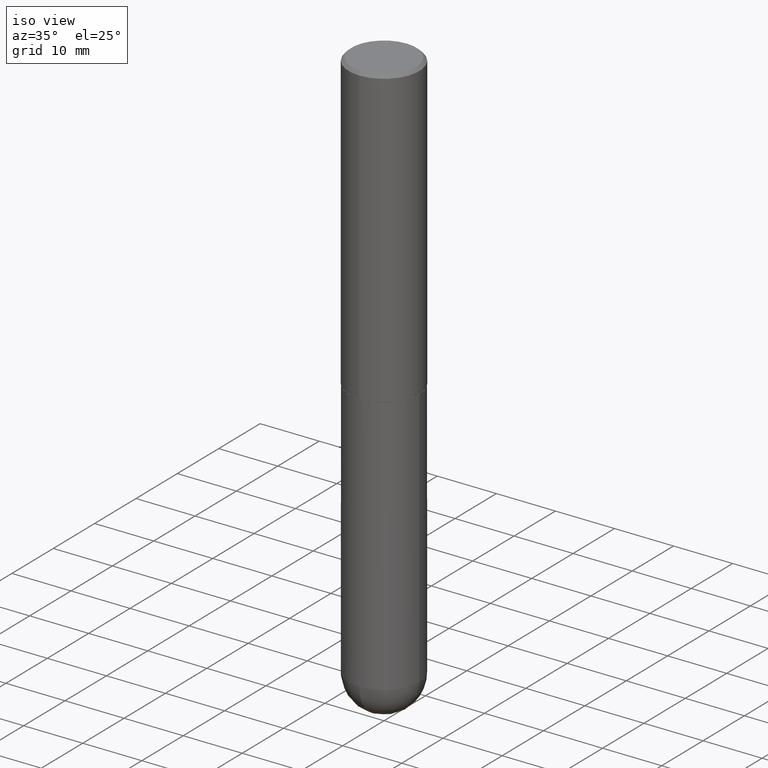
[diagram: clean part render]
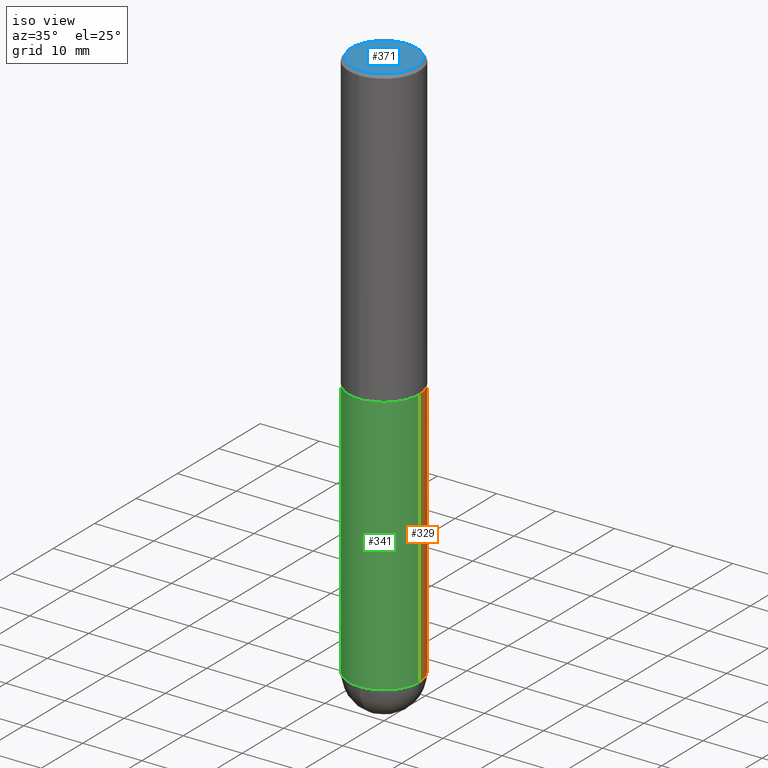
[diagram: same view with three faces highlighted in distinct colors, each labeled with its STEP entity id]
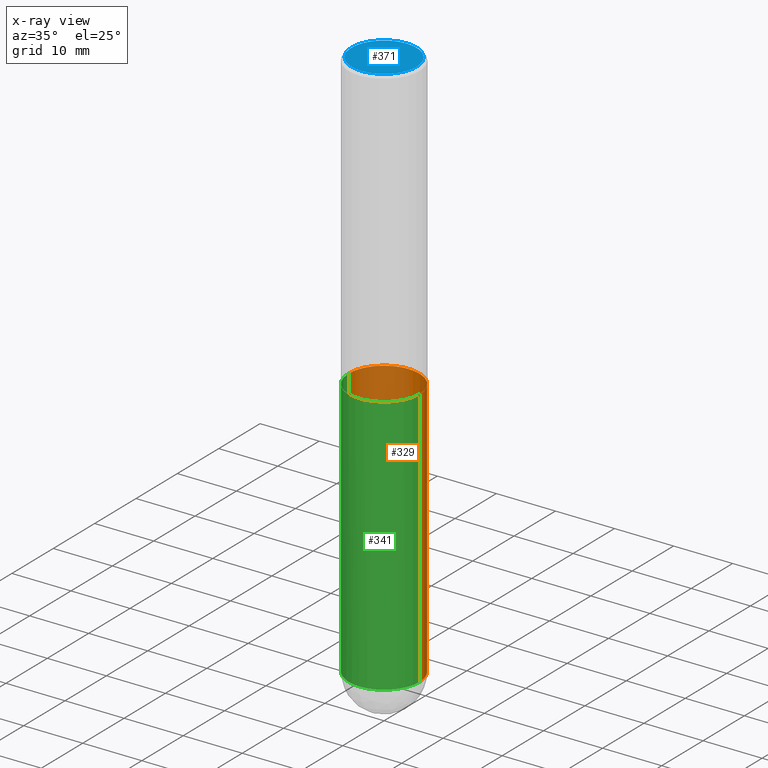
[diagram: x-ray of the same camera — body ghosted, the three highlighted faces saturated]
A machine part, iso view with three faces highlighted in distinct colors.
The next image is the same camera in x-ray (body ghosted, the three faces saturated) — at least one of them is partly hidden behind the body in this view.
Their STEP definitions:

[orange] entity #329 — the highlighted cylindrical surface (partial cylindrical patch) has radius 5.9995 mm, axis along (-0, 0, 1).
#5 = CIRCLE ( 'NONE', #134, 0.2361999999999999933 ) ;
#46 = DIRECTION ( 'NONE',  ( -2.445468806185136597E-29, 3.491481338843145583E-15, 1.000000000000000000 ) ) ;
#48 = CYLINDRICAL_SURFACE ( 'NONE', #389, 0.2361999999999999933 ) ;
#61 = VERTEX_POINT ( 'NONE', #96 ) ;
#62 = CARTESIAN_POINT ( 'NONE',  ( -0.2361999999999999933, 1.678301941865356591E-15, -1.161852468318208757E-29 ) ) ;
#83 = ORIENTED_EDGE ( 'NONE', *, *, #91, .F. ) ;
#88 = EDGE_CURVE ( 'NONE', #220, #141, #5, .T. ) ;
#91 = EDGE_CURVE ( 'NONE', #107, #61, #196, .T. ) ;
#93 = DIRECTION ( 'NONE',  ( 1.000000000000000000, -6.982962677686265133E-15, 0.000000000000000000 ) ) ;
#96 = CARTESIAN_POINT ( 'NONE',  ( 0.2361999999999999933, -8.522356799982228232E-15, -1.968500000000000139 ) ) ;
#100 = DIRECTION ( 'NONE',  ( 1.000000000000000000, -6.982962677686265133E-15, 0.000000000000000000 ) ) ;
#107 = VERTEX_POINT ( 'NONE', #192 ) ;
#111 = ORIENTED_EDGE ( 'NONE', *, *, #158, .T. ) ;
#123 = DIRECTION ( 'NONE',  ( -2.445468806185136597E-29, 3.491481338843145583E-15, 1.000000000000000000 ) ) ;
#129 = CARTESIAN_POINT ( 'NONE',  ( 9.050190957929953666E-29, -1.292127413879071357E-14, -3.700800000000000090 ) ) ;
#134 = AXIS2_PLACEMENT_3D ( 'NONE', #154, #391, #93 ) ;
#135 = CARTESIAN_POINT ( 'NONE',  ( -0.2361999999999999933, -8.218825635286365458E-15, -1.968500000000000139 ) ) ;
#141 = VERTEX_POINT ( 'NONE', #152 ) ;
#152 = CARTESIAN_POINT ( 'NONE',  ( -0.2361999999999999933, -8.218825635286368613E-15, -3.700800000000000090 ) ) ;
#154 = CARTESIAN_POINT ( 'NONE',  ( 9.050190957929953666E-29, -1.292127413879071357E-14, -3.700800000000000090 ) ) ;
#157 = AXIS2_PLACEMENT_3D ( 'NONE', #129, #170, #100 ) ;
#158 = EDGE_CURVE ( 'NONE', #141, #381, #222, .T. ) ;
#164 = DIRECTION ( 'NONE',  ( 1.000000000000000000, -6.982962677686269077E-15, 0.000000000000000000 ) ) ;
#170 = DIRECTION ( 'NONE',  ( -2.445468806185136597E-29, 3.491481338843145583E-15, 1.000000000000000000 ) ) ;
#192 = CARTESIAN_POINT ( 'NONE',  ( 0.2361999999999999933, -1.154650336162122153E-14, -3.700800000000000090 ) ) ;
#196 = LINE ( 'NONE', #301, #233 ) ;
#214 = DIRECTION ( 'NONE',  ( 1.000000000000000000, -6.982962677686266711E-15, 4.876176775795936353E-29 ) ) ;
#220 = VERTEX_POINT ( 'NONE', #377 ) ;
#222 = LINE ( 'NONE', #62, #287 ) ;
#233 = VECTOR ( 'NONE', #236, 39.37007874015748143 ) ;
#236 = DIRECTION ( 'NONE',  ( -2.445468806185136877E-29, 3.491481338843145188E-15, 1.000000000000000000 ) ) ;
#239 = AXIS2_PLACEMENT_3D ( 'NONE', #410, #46, #164 ) ;
#244 = CIRCLE ( 'NONE', #239, 0.2361999999999999933 ) ;
#245 = ORIENTED_EDGE ( 'NONE', *, *, #309, .F. ) ;
#252 = DIRECTION ( 'NONE',  ( -2.445468806185136877E-29, 3.491481338843145188E-15, 1.000000000000000000 ) ) ;
#256 = ORIENTED_EDGE ( 'NONE', *, *, #88, .T. ) ;
#287 = VECTOR ( 'NONE', #252, 39.37007874015748143 ) ;
#289 = EDGE_CURVE ( 'NONE', #107, #220, #397, .T. ) ;
#301 = CARTESIAN_POINT ( 'NONE',  ( 0.2361999999999999933, -1.649375784469496131E-15, 1.151752954443000088E-29 ) ) ;
#304 = FACE_OUTER_BOUND ( 'NONE', #349, .T. ) ;
#309 = EDGE_CURVE ( 'NONE', #61, #381, #244, .T. ) ;
#321 = ORIENTED_EDGE ( 'NONE', *, *, #289, .T. ) ;
#329 = ADVANCED_FACE ( 'NONE', ( #304 ), #48, .T. ) ;
#349 = EDGE_LOOP ( 'NONE', ( #256, #111, #245, #83, #321 ) ) ;
#377 = CARTESIAN_POINT ( 'NONE',  ( 1.649375784469585666E-15, 0.2361999999999869759, -3.700800000000000978 ) ) ;
#381 = VERTEX_POINT ( 'NONE', #135 ) ;
#389 = AXIS2_PLACEMENT_3D ( 'NONE', #403, #123, #214 ) ;
#391 = DIRECTION ( 'NONE',  ( -2.445468806185136597E-29, 3.491481338843145583E-15, 1.000000000000000000 ) ) ;
#397 = CIRCLE ( 'NONE', #157, 0.2361999999999999933 ) ;
#403 = CARTESIAN_POINT ( 'NONE',  ( 0.000000000000000000, 0.000000000000000000, 0.000000000000000000 ) ) ;
#410 = CARTESIAN_POINT ( 'NONE',  ( 4.813905344975441835E-29, -6.872981015512731707E-15, -1.968500000000000139 ) ) ;

[blue] entity #371 — the highlighted planar face has unit normal (0, -0, -1).
#1 = DIRECTION ( 'NONE',  ( -6.982962677686265922E-15, -1.000000000000000000, 3.490229039397398317E-15 ) ) ;
#9 = EDGE_CURVE ( 'NONE', #224, #274, #254, .T. ) ;
#21 = CARTESIAN_POINT ( 'NONE',  ( 1.509716530915770323E-15, 0.2161999999999999478, -7.440516106625514919E-16 ) ) ;
#33 = EDGE_LOOP ( 'NONE', ( #115, #310 ) ) ;
#43 = CARTESIAN_POINT ( 'NONE',  ( -1.551844647095919747E-15, -0.2161999999999999478, 7.756593336280488957E-16 ) ) ;
#53 = CARTESIAN_POINT ( 'NONE',  ( 1.579546157692633424E-15, 0.2161999999999999478, -7.335157030073857892E-16 ) ) ;
#77 = AXIS2_PLACEMENT_3D ( 'NONE', #21, #132, #204 ) ;
#99 = FACE_OUTER_BOUND ( 'NONE', #33, .T. ) ;
#115 = ORIENTED_EDGE ( 'NONE', *, *, #9, .T. ) ;
#130 = CIRCLE ( 'NONE', #161, 0.2161999999999999478 ) ;
#132 = DIRECTION ( 'NONE',  ( 2.446343282214230400E-29, -3.490229039397398317E-15, -1.000000000000000000 ) ) ;
#161 = AXIS2_PLACEMENT_3D ( 'NONE', #202, #175, #243 ) ;
#175 = DIRECTION ( 'NONE',  ( -2.446343282214230400E-29, 3.490229039397398712E-15, 1.000000000000000000 ) ) ;
#182 = CARTESIAN_POINT ( 'NONE',  ( -5.154889382848865160E-46, 7.354546170893803255E-32, 2.107181531033159333E-17 ) ) ;
#202 = CARTESIAN_POINT ( 'NONE',  ( -5.154889382848865160E-46, 7.354546170893803255E-32, 2.107181531033159333E-17 ) ) ;
#204 = DIRECTION ( 'NONE',  ( 6.982962677686265922E-15, 1.000000000000000000, -3.490229039397398317E-15 ) ) ;
#224 = VERTEX_POINT ( 'NONE', #53 ) ;
#243 = DIRECTION ( 'NONE',  ( -6.982962677686265922E-15, -1.000000000000000000, 3.490229039397398317E-15 ) ) ;
#254 = CIRCLE ( 'NONE', #387, 0.2161999999999999478 ) ;
#274 = VERTEX_POINT ( 'NONE', #43 ) ;
#281 = DIRECTION ( 'NONE',  ( -2.446343282214230400E-29, 3.490229039397398712E-15, 1.000000000000000000 ) ) ;
#297 = EDGE_CURVE ( 'NONE', #274, #224, #130, .T. ) ;
#303 = PLANE ( 'NONE',  #77 ) ;
#310 = ORIENTED_EDGE ( 'NONE', *, *, #297, .T. ) ;
#371 = ADVANCED_FACE ( 'NONE', ( #99 ), #303, .F. ) ;
#387 = AXIS2_PLACEMENT_3D ( 'NONE', #182, #281, #1 ) ;

[green] entity #341 — the highlighted cylindrical surface (partial cylindrical patch) has radius 5.9995 mm, axis along (-0, 0, 1).
#13 = CARTESIAN_POINT ( 'NONE',  ( -1.678301941865268633E-15, -0.2362000000000132882, -3.700799999999998757 ) ) ;
#15 = CIRCLE ( 'NONE', #105, 0.2361999999999999933 ) ;
#28 = DIRECTION ( 'NONE',  ( -2.445468806185136597E-29, 3.491481338843145583E-15, 1.000000000000000000 ) ) ;
#61 = VERTEX_POINT ( 'NONE', #96 ) ;
#62 = CARTESIAN_POINT ( 'NONE',  ( -0.2361999999999999933, 1.678301941865356591E-15, -1.161852468318208757E-29 ) ) ;
#66 = EDGE_CURVE ( 'NONE', #141, #84, #15, .T. ) ;
#76 = DIRECTION ( 'NONE',  ( 1.000000000000000000, -6.982962677686265133E-15, 0.000000000000000000 ) ) ;
#84 = VERTEX_POINT ( 'NONE', #13 ) ;
#91 = EDGE_CURVE ( 'NONE', #107, #61, #196, .T. ) ;
#96 = CARTESIAN_POINT ( 'NONE',  ( 0.2361999999999999933, -8.522356799982228232E-15, -1.968500000000000139 ) ) ;
#105 = AXIS2_PLACEMENT_3D ( 'NONE', #235, #368, #76 ) ;
#106 = ORIENTED_EDGE ( 'NONE', *, *, #361, .F. ) ;
#107 = VERTEX_POINT ( 'NONE', #192 ) ;
#117 = CYLINDRICAL_SURFACE ( 'NONE', #143, 0.2361999999999999933 ) ;
#135 = CARTESIAN_POINT ( 'NONE',  ( -0.2361999999999999933, -8.218825635286365458E-15, -1.968500000000000139 ) ) ;
#141 = VERTEX_POINT ( 'NONE', #152 ) ;
#143 = AXIS2_PLACEMENT_3D ( 'NONE', #313, #28, #317 ) ;
#152 = CARTESIAN_POINT ( 'NONE',  ( -0.2361999999999999933, -8.218825635286368613E-15, -3.700800000000000090 ) ) ;
#158 = EDGE_CURVE ( 'NONE', #141, #381, #222, .T. ) ;
#181 = CARTESIAN_POINT ( 'NONE',  ( 9.050190957929953666E-29, -1.292127413879071357E-14, -3.700800000000000090 ) ) ;
#190 = EDGE_CURVE ( 'NONE', #84, #107, #372, .T. ) ;
#192 = CARTESIAN_POINT ( 'NONE',  ( 0.2361999999999999933, -1.154650336162122153E-14, -3.700800000000000090 ) ) ;
#196 = LINE ( 'NONE', #301, #233 ) ;
#201 = AXIS2_PLACEMENT_3D ( 'NONE', #382, #283, #237 ) ;
#210 = DIRECTION ( 'NONE',  ( 1.000000000000000000, -6.982962677686265133E-15, 0.000000000000000000 ) ) ;
#222 = LINE ( 'NONE', #62, #287 ) ;
#233 = VECTOR ( 'NONE', #236, 39.37007874015748143 ) ;
#235 = CARTESIAN_POINT ( 'NONE',  ( 9.050190957929953666E-29, -1.292127413879071357E-14, -3.700800000000000090 ) ) ;
#236 = DIRECTION ( 'NONE',  ( -2.445468806185136877E-29, 3.491481338843145188E-15, 1.000000000000000000 ) ) ;
#237 = DIRECTION ( 'NONE',  ( 1.000000000000000000, -6.982962677686269077E-15, 0.000000000000000000 ) ) ;
#247 = ORIENTED_EDGE ( 'NONE', *, *, #91, .T. ) ;
#252 = DIRECTION ( 'NONE',  ( -2.445468806185136877E-29, 3.491481338843145188E-15, 1.000000000000000000 ) ) ;
#280 = ORIENTED_EDGE ( 'NONE', *, *, #66, .T. ) ;
#283 = DIRECTION ( 'NONE',  ( -2.445468806185136597E-29, 3.491481338843145583E-15, 1.000000000000000000 ) ) ;
#287 = VECTOR ( 'NONE', #252, 39.37007874015748143 ) ;
#301 = CARTESIAN_POINT ( 'NONE',  ( 0.2361999999999999933, -1.649375784469496131E-15, 1.151752954443000088E-29 ) ) ;
#308 = ORIENTED_EDGE ( 'NONE', *, *, #190, .T. ) ;
#311 = DIRECTION ( 'NONE',  ( -2.445468806185136597E-29, 3.491481338843145583E-15, 1.000000000000000000 ) ) ;
#313 = CARTESIAN_POINT ( 'NONE',  ( 0.000000000000000000, 0.000000000000000000, 0.000000000000000000 ) ) ;
#315 = ORIENTED_EDGE ( 'NONE', *, *, #158, .F. ) ;
#317 = DIRECTION ( 'NONE',  ( 1.000000000000000000, -6.982962677686266711E-15, 4.876176775795936353E-29 ) ) ;
#331 = CIRCLE ( 'NONE', #201, 0.2361999999999999933 ) ;
#341 = ADVANCED_FACE ( 'NONE', ( #345 ), #117, .T. ) ;
#345 = FACE_OUTER_BOUND ( 'NONE', #379, .T. ) ;
#361 = EDGE_CURVE ( 'NONE', #381, #61, #331, .T. ) ;
#368 = DIRECTION ( 'NONE',  ( -2.445468806185136597E-29, 3.491481338843145583E-15, 1.000000000000000000 ) ) ;
#372 = CIRCLE ( 'NONE', #375, 0.2361999999999999933 ) ;
#375 = AXIS2_PLACEMENT_3D ( 'NONE', #181, #311, #210 ) ;
#379 = EDGE_LOOP ( 'NONE', ( #315, #280, #308, #247, #106 ) ) ;
#381 = VERTEX_POINT ( 'NONE', #135 ) ;
#382 = CARTESIAN_POINT ( 'NONE',  ( 4.813905344975441835E-29, -6.872981015512731707E-15, -1.968500000000000139 ) ) ;